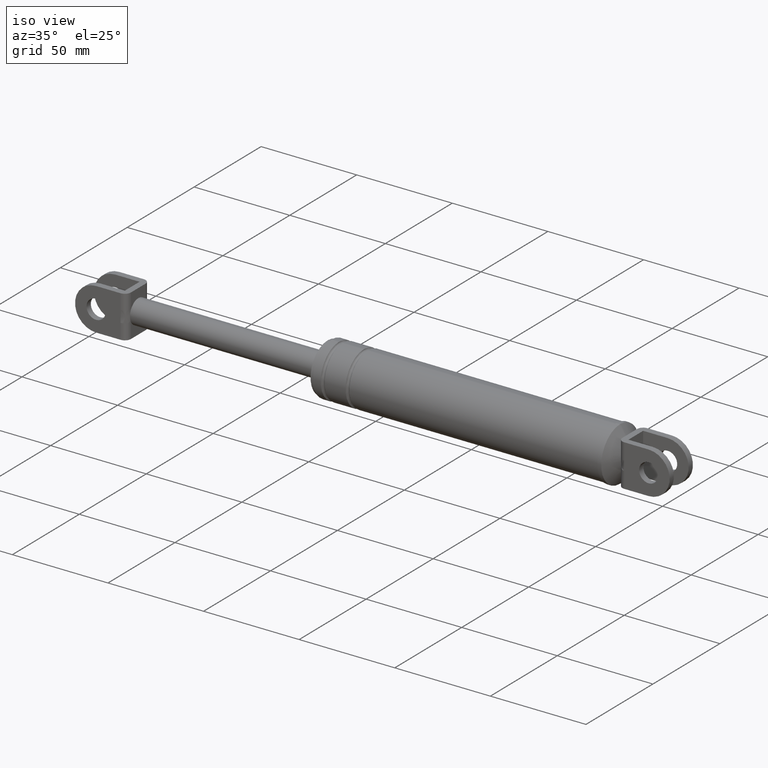
[diagram: clean part render]
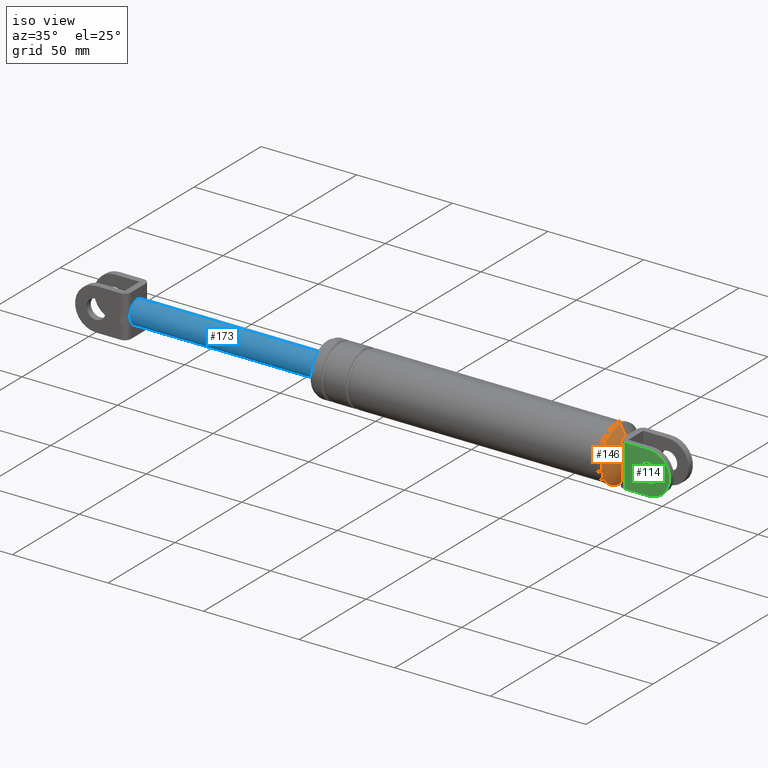
[diagram: same view with three faces highlighted in distinct colors, each labeled with its STEP entity id]
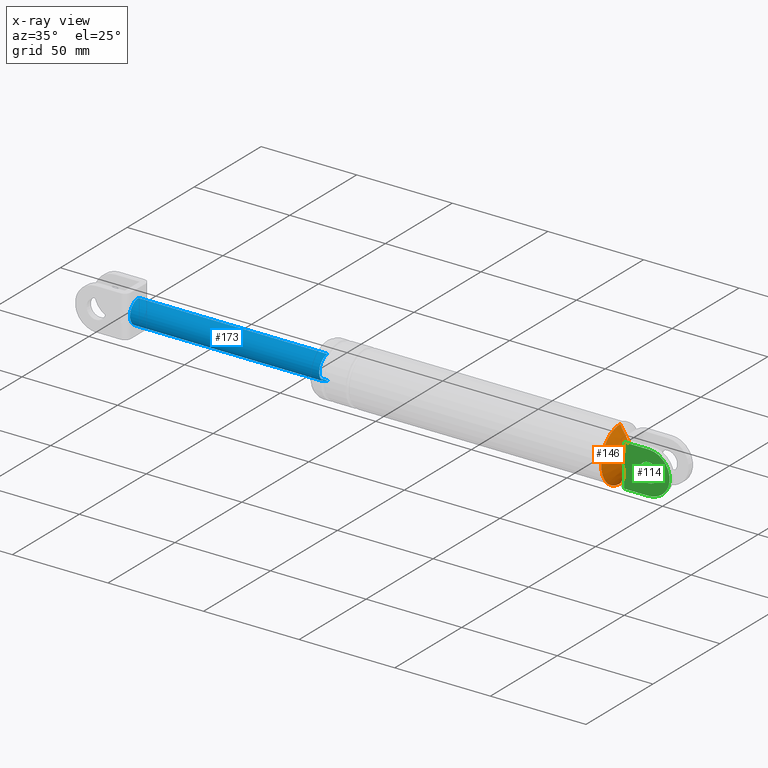
[diagram: x-ray of the same camera — body ghosted, the three highlighted faces saturated]
A machine part, iso view with three faces highlighted in distinct colors.
The next image is the same camera in x-ray (body ghosted, the three faces saturated) — at least one of them is partly hidden behind the body in this view.
Their STEP definitions:

[orange] entity #146 — the highlighted face is a freeform B-spline surface patch.
#146=ADVANCED_FACE('',(#523),#522,.T.);
#522=( BOUNDED_SURFACE() B_SPLINE_SURFACE( 2,1,((#1178,#1179),(#1180,#1181),(#1182,#1183),(#1184,#1185),(#1186,#1187)), .UNSPECIFIED.,.F.,.F.,.F.) B_SPLINE_SURFACE_WITH_KNOTS((3,2,3),(2,2),(0.00000000000E+000,5.00000000000E-001,1.00000000000E+000),(0.00000000000E+000,1.00000000000E+000), .UNSPECIFIED. ) GEOMETRIC_REPRESENTATION_ITEM() RATIONAL_B_SPLINE_SURFACE(((1.00000000000E+000,1.00000000000E+000),(7.07106781187E-001,7.07106781187E-001),(1.00000000000E+000,1.00000000000E+000),(7.07106781187E-001,7.07106781187E-001),(1.00000000000E+000,1.00000000000E+000))) REPRESENTATION_ITEM('') SURFACE() );
#523=FACE_OUTER_BOUND('',#1188,.T.);
#1178=CARTESIAN_POINT('',(3.36542319262E+002,0.00000000000E+000,1.91319381208E+002));
#1179=CARTESIAN_POINT('',(3.24233423441E+002,-4.88399215717E-015,1.71378969979E+002));
#1180=CARTESIAN_POINT('',(3.36542319262E+002,0.00000000000E+000,1.91319381208E+002));
#1181=CARTESIAN_POINT('',(3.24233423441E+002,-1.99404112295E+001,1.71378969979E+002));
#1182=CARTESIAN_POINT('',(3.36542319262E+002,0.00000000000E+000,1.91319381208E+002));
#1183=CARTESIAN_POINT('',(3.24233423441E+002,-1.99404112295E+001,1.91319381208E+002));
#1184=CARTESIAN_POINT('',(3.36542319262E+002,0.00000000000E+000,1.91319381208E+002));
#1185=CARTESIAN_POINT('',(3.24233423441E+002,-1.99404112295E+001,2.11259792438E+002));
#1186=CARTESIAN_POINT('',(3.36542319262E+002,0.00000000000E+000,1.91319381208E+002));
#1187=CARTESIAN_POINT('',(3.24233423441E+002,2.44199607858E-015,2.11259792438E+002));
#1188=EDGE_LOOP('',(#1556,#1557,#1558,#1559,#1560,#1561));
#1556=ORIENTED_EDGE('',*,*,#1795,.F.);
#1557=ORIENTED_EDGE('',*,*,#1796,.F.);
#1558=ORIENTED_EDGE('',*,*,#1723,.T.);
#1559=ORIENTED_EDGE('',*,*,#1715,.T.);
#1560=ORIENTED_EDGE('',*,*,#1731,.T.);
#1561=ORIENTED_EDGE('',*,*,#1797,.T.);
#1715=EDGE_CURVE('',#1892,#1907,#1914,.T.);
#1723=EDGE_CURVE('',#1968,#1892,#1969,.T.);
#1731=EDGE_CURVE('',#1907,#2015,#2022,.T.);
#1795=EDGE_CURVE('',#2425,#2424,#2444,.T.);
#1796=EDGE_CURVE('',#1968,#2425,#2450,.T.);
#1797=EDGE_CURVE('',#2015,#2424,#2456,.T.);
#1892=VERTEX_POINT('',#2924);
#1907=VERTEX_POINT('',#2941);
#1914=CIRCLE('',#2949,6.00000000000E+000);
#1968=VERTEX_POINT('',#2980);
#1969=CIRCLE('',#2984,6.00000000000E+000);
#2015=VERTEX_POINT('',#3008);
#2022=CIRCLE('',#3016,6.00000000000E+000);
#2424=VERTEX_POINT('',#3268);
#2425=VERTEX_POINT('',#3269);
#2444=CIRCLE('',#3281,1.41000000000E+001);
#2450=(BOUNDED_CURVE() B_SPLINE_CURVE(1,(#3282,#3283),.UNSPECIFIED.,.F.,.F.) B_SPLINE_CURVE_WITH_KNOTS((2,2),(3.00896503032E-001,7.07106781040E-001),.UNSPECIFIED.) CURVE() GEOMETRIC_REPRESENTATION_ITEM() RATIONAL_B_SPLINE_CURVE((1.00000000000E+000,1.00000000000E+000)) REPRESENTATION_ITEM('') );
#2456=(BOUNDED_CURVE() B_SPLINE_CURVE(1,(#3284,#3285),.UNSPECIFIED.,.F.,.F.) B_SPLINE_CURVE_WITH_KNOTS((2,2),(3.00896479910E-001,7.07106774282E-001),.UNSPECIFIED.) CURVE() GEOMETRIC_REPRESENTATION_ITEM() RATIONAL_B_SPLINE_CURVE((7.50000000000E-001,7.50000000000E-001)) REPRESENTATION_ITEM('') );
#2924=CARTESIAN_POINT('',(3.32838615558E+002,-5.49999700000E+000,1.88921458566E+002));
#2941=CARTESIAN_POINT('',(3.32838615558E+002,-5.49999700000E+000,1.93717303851E+002));
#2946=CARTESIAN_POINT('',(3.32838615558E+002,0.00000000000E+000,1.91319381208E+002));
#2947=DIRECTION('',(-1.00000000000E+000,0.00000000000E+000,0.00000000000E+000));
#2948=DIRECTION('',(-0.00000000000E+000,-0.00000000000E+000,-1.00000000000E+000));
#2949=AXIS2_PLACEMENT_3D('',#2946,#2947,#2948);
#2980=CARTESIAN_POINT('',(3.32838615558E+002,-1.08180064096E-010,1.85319381208E+002));
#2981=CARTESIAN_POINT('',(3.32838615558E+002,0.00000000000E+000,1.91319381208E+002));
#2982=DIRECTION('',(-1.00000000000E+000,0.00000000000E+000,0.00000000000E+000));
#2983=DIRECTION('',(-0.00000000000E+000,9.16666166667E-001,-3.99653773770E-001));
#2984=AXIS2_PLACEMENT_3D('',#2981,#2982,#2983);
#3008=CARTESIAN_POINT('',(3.32838615558E+002,2.39649929808E-007,1.97319381208E+002));
#3013=CARTESIAN_POINT('',(3.32838615558E+002,0.00000000000E+000,1.91319381208E+002));
#3014=DIRECTION('',(-1.00000000000E+000,0.00000000000E+000,0.00000000000E+000));
#3015=DIRECTION('',(-0.00000000000E+000,-0.00000000000E+000,-1.00000000000E+000));
#3016=AXIS2_PLACEMENT_3D('',#3013,#3014,#3015);
#3268=CARTESIAN_POINT('',(3.27838615558E+002,0.00000000000E+000,2.05419381208E+002));
#3269=CARTESIAN_POINT('',(3.27838615558E+002,5.92118946467E-016,1.77219381208E+002));
#3278=CARTESIAN_POINT('',(3.27838615558E+002,0.00000000000E+000,1.91319381208E+002));
#3279=DIRECTION('',(-1.00000000000E+000,0.00000000000E+000,0.00000000000E+000));
#3280=DIRECTION('',(0.00000000000E+000,-1.22460635382E-016,1.00000000000E+000));
#3281=AXIS2_PLACEMENT_3D('',#3278,#3279,#3280);
#3282=CARTESIAN_POINT('',(3.32838615553E+002,-1.46957616093E-015,1.85319381201E+002));
#3283=CARTESIAN_POINT('',(3.27838615560E+002,-3.45350397288E-015,1.77219381211E+002));
#3284=CARTESIAN_POINT('',(3.32838615838E+002,2.13799808016E-015,1.97319380755E+002));
#3285=CARTESIAN_POINT('',(3.27838615643E+002,5.02429581873E-015,2.05419381071E+002));

[blue] entity #173 — the highlighted cylindrical surface (edge-blend (fillet) strip) has radius 6.25 mm, axis along (1, 0, 0).
#173=ADVANCED_FACE('',(#797),#796,.T.);
#796=CYLINDRICAL_SURFACE('',#1384,6.25000000000E+000);
#797=FACE_OUTER_BOUND('',#1385,.T.);
#1381=CARTESIAN_POINT('',(0.00000000000E+000,0.00000000000E+000,1.91319381208E+002));
#1382=DIRECTION('',(1.00000000000E+000,-0.00000000000E+000,-0.00000000000E+000));
#1383=DIRECTION('',(0.00000000000E+000,0.00000000000E+000,-1.00000000000E+000));
#1384=AXIS2_PLACEMENT_3D('',#1381,#1382,#1383);
#1385=EDGE_LOOP('',(#1694,#1695,#1696,#1697,#1698,#1699));
#1694=ORIENTED_EDGE('',*,*,#1832,.F.);
#1695=ORIENTED_EDGE('',*,*,#1811,.F.);
#1696=ORIENTED_EDGE('',*,*,#1842,.F.);
#1697=ORIENTED_EDGE('',*,*,#1860,.T.);
#1698=ORIENTED_EDGE('',*,*,#1852,.T.);
#1699=ORIENTED_EDGE('',*,*,#1861,.F.);
#1811=EDGE_CURVE('',#2542,#2549,#2550,.T.);
#1832=EDGE_CURVE('',#2549,#2691,#2692,.T.);
#1842=EDGE_CURVE('',#2752,#2542,#2759,.T.);
#1852=EDGE_CURVE('',#2822,#2823,#2824,.T.);
#1860=EDGE_CURVE('',#2752,#2822,#2874,.T.);
#1861=EDGE_CURVE('',#2691,#2823,#2880,.T.);
#2542=VERTEX_POINT('',#3336);
#2549=VERTEX_POINT('',#3341);
#2550=CIRCLE('',#3345,6.25000000000E+000);
#2691=VERTEX_POINT('',#3438);
#2692=CIRCLE('',#3442,6.25000000000E+000);
#2752=VERTEX_POINT('',#3477);
#2759=CIRCLE('',#3485,6.25000000000E+000);
#2822=VERTEX_POINT('',#3517);
#2823=VERTEX_POINT('',#3518);
#2824=CIRCLE('',#3522,6.25000000000E+000);
#2874=(BOUNDED_CURVE() B_SPLINE_CURVE(1,(#3548,#3549),.UNSPECIFIED.,.F.,.F.) B_SPLINE_CURVE_WITH_KNOTS((2,2),(8.33333332085E-002,9.16666666563E-001),.UNSPECIFIED.) CURVE() GEOMETRIC_REPRESENTATION_ITEM() RATIONAL_B_SPLINE_CURVE((1.00000000000E+000,1.00000000000E+000)) REPRESENTATION_ITEM('') );
#2880=(BOUNDED_CURVE() B_SPLINE_CURVE(1,(#3550,#3551),.UNSPECIFIED.,.F.,.F.) B_SPLINE_CURVE_WITH_KNOTS((2,2),(8.33333333333E-002,9.16666666667E-001),.UNSPECIFIED.) CURVE() GEOMETRIC_REPRESENTATION_ITEM() RATIONAL_B_SPLINE_CURVE((7.50000000000E-001,7.50000000000E-001)) REPRESENTATION_ITEM('') );
#3336=CARTESIAN_POINT('',(7.58386155579E+001,-5.49999700000E+000,1.88350790129E+002));
#3341=CARTESIAN_POINT('',(7.58386155579E+001,-5.49999700000E+000,1.94287972288E+002));
#3342=CARTESIAN_POINT('',(7.58386155579E+001,0.00000000000E+000,1.91319381208E+002));
#3343=DIRECTION('',(-1.00000000000E+000,0.00000000000E+000,0.00000000000E+000));
#3344=DIRECTION('',(-0.00000000000E+000,-0.00000000000E+000,-1.00000000000E+000));
#3345=AXIS2_PLACEMENT_3D('',#3342,#3343,#3344);
#3438=CARTESIAN_POINT('',(7.58386155579E+001,7.89135260823E-007,1.97569381208E+002));
#3439=CARTESIAN_POINT('',(7.58386155579E+001,0.00000000000E+000,1.91319381208E+002));
#3440=DIRECTION('',(-1.00000000000E+000,0.00000000000E+000,0.00000000000E+000));
#3441=DIRECTION('',(-0.00000000000E+000,-0.00000000000E+000,-1.00000000000E+000));
#3442=AXIS2_PLACEMENT_3D('',#3439,#3440,#3441);
#3477=CARTESIAN_POINT('',(7.58386155579E+001,-4.27300971200E-012,1.85069381208E+002));
#3482=CARTESIAN_POINT('',(7.58386155579E+001,0.00000000000E+000,1.91319381208E+002));
#3483=DIRECTION('',(-1.00000000000E+000,0.00000000000E+000,0.00000000000E+000));
#3484=DIRECTION('',(-0.00000000000E+000,8.79999520000E-001,-4.74974572793E-001));
#3485=AXIS2_PLACEMENT_3D('',#3482,#3483,#3484);
#3517=CARTESIAN_POINT('',(1.74838615558E+002,0.00000000000E+000,1.85069381208E+002));
#3518=CARTESIAN_POINT('',(1.74838615558E+002,0.00000000000E+000,1.97569381208E+002));
#3519=CARTESIAN_POINT('',(1.74838615558E+002,0.00000000000E+000,1.91319381208E+002));
#3520=DIRECTION('',(-1.00000000000E+000,0.00000000000E+000,0.00000000000E+000));
#3521=DIRECTION('',(0.00000000000E+000,-1.22460635382E-016,1.00000000000E+000));
#3522=AXIS2_PLACEMENT_3D('',#3519,#3520,#3521);
#3548=CARTESIAN_POINT('',(7.58386155431E+001,0.00000000000E+000,1.85069381208E+002));
#3549=CARTESIAN_POINT('',(1.74838615546E+002,0.00000000000E+000,1.85069381208E+002));
#3550=CARTESIAN_POINT('',(7.58386155579E+001,0.00000000000E+000,1.97569381208E+002));
#3551=CARTESIAN_POINT('',(1.74838615558E+002,0.00000000000E+000,1.97569381208E+002));

[green] entity #114 — the highlighted planar face has unit normal (0, 1, 0).
#114=ADVANCED_FACE('',(#197,#198),#196,.F.);
#196=PLANE('',#891);
#197=FACE_OUTER_BOUND('',#892,.T.);
#198=FACE_BOUND('',#893,.T.);
#888=CARTESIAN_POINT('',(3.33615375834E+002,-8.69999700000E+000,1.78119380057E+002));
#889=DIRECTION('',(0.00000000000E+000,1.00000000000E+000,0.00000000000E+000));
#890=DIRECTION('',(0.00000000000E+000,0.00000000000E+000,1.00000000000E+000));
#891=AXIS2_PLACEMENT_3D('',#888,#889,#890);
#892=EDGE_LOOP('',(#1404,#1405,#1406,#1407,#1408,#1409));
#893=EDGE_LOOP('',(#1410,#1411));
#1404=ORIENTED_EDGE('',*,*,#1716,.F.);
#1405=ORIENTED_EDGE('',*,*,#1717,.T.);
#1406=ORIENTED_EDGE('',*,*,#1713,.T.);
#1407=ORIENTED_EDGE('',*,*,#1718,.T.);
#1408=ORIENTED_EDGE('',*,*,#1719,.T.);
#1409=ORIENTED_EDGE('',*,*,#1720,.T.);
#1410=ORIENTED_EDGE('',*,*,#1721,.F.);
#1411=ORIENTED_EDGE('',*,*,#1722,.F.);
#1713=EDGE_CURVE('',#1900,#1893,#1901,.T.);
#1716=EDGE_CURVE('',#1920,#1921,#1922,.T.);
#1717=EDGE_CURVE('',#1920,#1900,#1928,.T.);
#1718=EDGE_CURVE('',#1893,#1934,#1935,.T.);
#1719=EDGE_CURVE('',#1934,#1941,#1942,.T.);
#1720=EDGE_CURVE('',#1941,#1921,#1948,.T.);
#1721=EDGE_CURVE('',#1954,#1955,#1956,.T.);
#1722=EDGE_CURVE('',#1955,#1954,#1962,.T.);
#1893=VERTEX_POINT('',#2925);
#1900=VERTEX_POINT('',#2930);
#1901=(BOUNDED_CURVE() B_SPLINE_CURVE(3,(#2931,#2932,#2933,#2934,#2935,#2936,#2937,#2938,#2939,#2940),.UNSPECIFIED.,.F.,.F.) B_SPLINE_CURVE_WITH_KNOTS((4,2,2,2,4),(0.00000000000E+000,1.19890467989E-003,2.39780935978E-003,3.59671403966E-003,4.79561871955E-003),.UNSPECIFIED.) CURVE() GEOMETRIC_REPRESENTATION_ITEM() RATIONAL_B_SPLINE_CURVE((1.00000000000E+000,1.00000000000E+000,1.00000000000E+000,1.00000000000E+000,1.00000000000E+000,1.00000000000E+000,1.00000000000E+000,1.00000000000E+000,1.00000000000E+000,1.00000000000E+000)) REPRESENTATION_ITEM('') );
#1920=VERTEX_POINT('',#2950);
#1921=VERTEX_POINT('',#2951);
#1922=LINE('',#2952,#2953);
#1928=LINE('',#2955,#2956);
#1934=VERTEX_POINT('',#2958);
#1935=LINE('',#2959,#2960);
#1941=VERTEX_POINT('',#2962);
#1942=LINE('',#2963,#2964);
#1948=CIRCLE('',#2969,1.10000000000E+001);
#1954=VERTEX_POINT('',#2970);
#1955=VERTEX_POINT('',#2971);
#1956=CIRCLE('',#2975,5.00000000000E+000);
#1962=CIRCLE('',#2979,5.00000000000E+000);
#2925=CARTESIAN_POINT('',(3.36038615558E+002,-8.69999700000E+000,1.88921458566E+002));
#2930=CARTESIAN_POINT('',(3.36038615558E+002,-8.69999700000E+000,1.93717303851E+002));
#2931=CARTESIAN_POINT('',(3.36038615558E+002,-8.69999700000E+000,1.93717303851E+002));
#2932=CARTESIAN_POINT('',(3.36038615558E+002,-8.69999700000E+000,1.93317647765E+002));
#2933=CARTESIAN_POINT('',(3.36026990213E+002,-8.69999700000E+000,1.92918111405E+002));
#2934=CARTESIAN_POINT('',(3.36007131286E+002,-8.69999700000E+000,1.92119003755E+002));
#2935=CARTESIAN_POINT('',(3.35999315705E+002,-8.69999700000E+000,1.91719428159E+002));
#2936=CARTESIAN_POINT('',(3.35999306718E+002,-8.69999700000E+000,1.90920116079E+002));
#2937=CARTESIAN_POINT('',(3.36007117390E+002,-8.69999700000E+000,1.90520357872E+002));
#2938=CARTESIAN_POINT('',(3.36026980862E+002,-8.69999700000E+000,1.89720987273E+002));
#2939=CARTESIAN_POINT('',(3.36038615558E+002,-8.69999700000E+000,1.89321334694E+002));
#2940=CARTESIAN_POINT('',(3.36038615558E+002,-8.69999700000E+000,1.88921458566E+002));
#2950=CARTESIAN_POINT('',(3.36038615558E+002,-8.69999700000E+000,2.02319381208E+002));
#2951=CARTESIAN_POINT('',(3.48838614598E+002,-8.69999700000E+000,2.02319381208E+002));
#2952=CARTESIAN_POINT('',(3.36038615558E+002,-8.69999700000E+000,2.02319381208E+002));
#2953=VECTOR('',#2954,1.27999990401E+001);
#2954=DIRECTION('',(1.00000000000E+000,0.00000000000E+000,0.00000000000E+000));
#2955=CARTESIAN_POINT('',(3.36038615558E+002,-8.69999700000E+000,2.02319381208E+002));
#2956=VECTOR('',#2957,8.60207735738E+000);
#2957=DIRECTION('',(0.00000000000E+000,0.00000000000E+000,-1.00000000000E+000));
#2958=CARTESIAN_POINT('',(3.36038615558E+002,-8.69999700000E+000,1.80319381208E+002));
#2959=CARTESIAN_POINT('',(3.36038615558E+002,-8.69999700000E+000,1.88921458566E+002));
#2960=VECTOR('',#2961,8.60207735738E+000);
#2961=DIRECTION('',(0.00000000000E+000,0.00000000000E+000,-1.00000000000E+000));
#2962=CARTESIAN_POINT('',(3.48838614598E+002,-8.69999700000E+000,1.80319381208E+002));
#2963=CARTESIAN_POINT('',(3.36038615558E+002,-8.69999700000E+000,1.80319381208E+002));
#2964=VECTOR('',#2965,1.27999990401E+001);
#2965=DIRECTION('',(1.00000000000E+000,0.00000000000E+000,0.00000000000E+000));
#2966=CARTESIAN_POINT('',(3.48838615558E+002,-8.69999700000E+000,1.91319381208E+002));
#2967=DIRECTION('',(-0.00000000000E+000,-1.00000000000E+000,0.00000000000E+000));
#2968=DIRECTION('',(-8.72664570491E-008,0.00000000000E+000,1.00000000000E+000));
#2969=AXIS2_PLACEMENT_3D('',#2966,#2967,#2968);
#2970=CARTESIAN_POINT('',(3.48838615558E+002,-8.69999700000E+000,1.86319381208E+002));
#2971=CARTESIAN_POINT('',(3.48838615558E+002,-8.69999700000E+000,1.96319381208E+002));
#2972=CARTESIAN_POINT('',(3.48838615558E+002,-8.69999700000E+000,1.91319381208E+002));
#2973=DIRECTION('',(-0.00000000000E+000,-1.00000000000E+000,0.00000000000E+000));
#2974=DIRECTION('',(-1.22460635382E-016,0.00000000000E+000,1.00000000000E+000));
#2975=AXIS2_PLACEMENT_3D('',#2972,#2973,#2974);
#2976=CARTESIAN_POINT('',(3.48838615558E+002,-8.69999700000E+000,1.91319381208E+002));
#2977=DIRECTION('',(-0.00000000000E+000,-1.00000000000E+000,0.00000000000E+000));
#2978=DIRECTION('',(-1.22460635382E-016,0.00000000000E+000,1.00000000000E+000));
#2979=AXIS2_PLACEMENT_3D('',#2976,#2977,#2978);